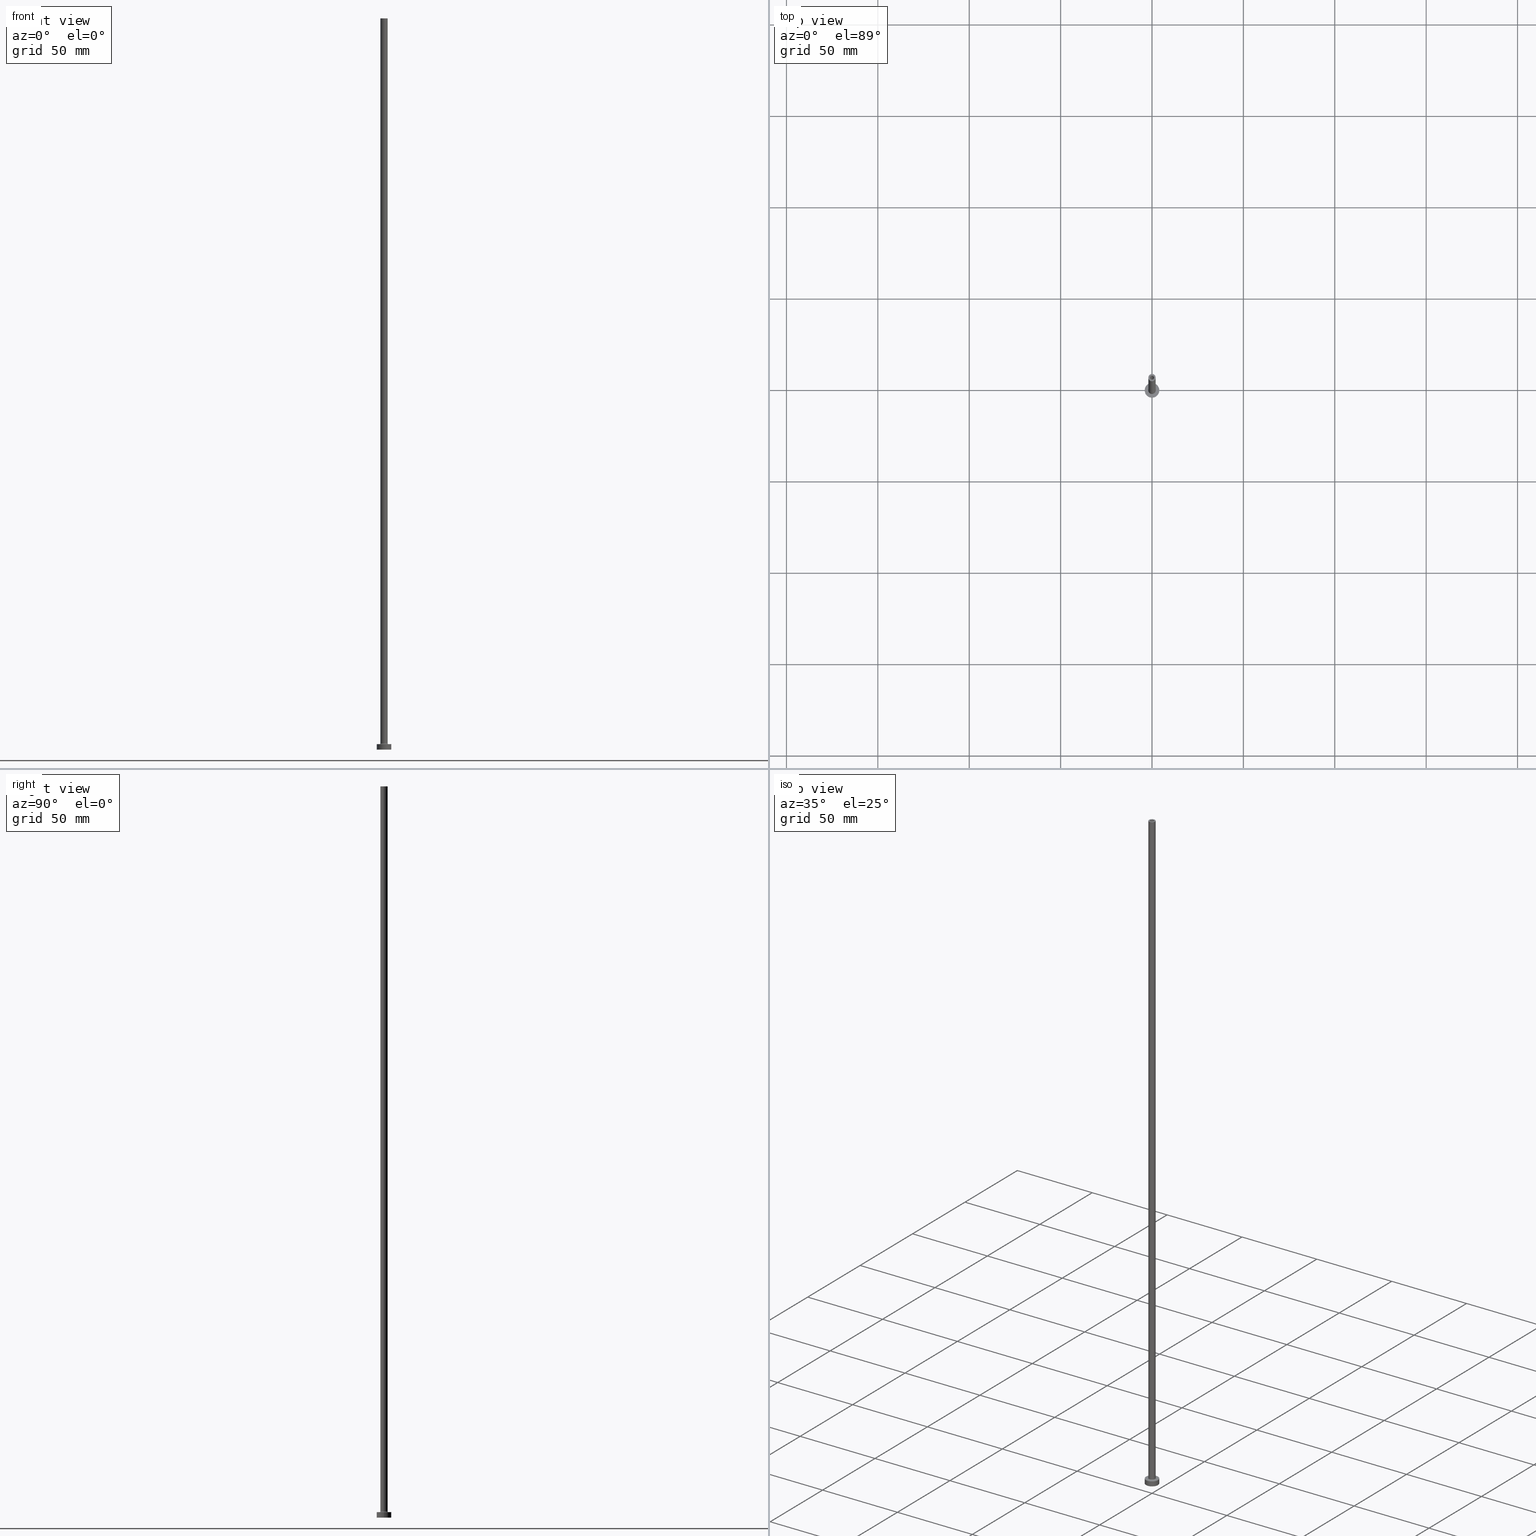
[diagram: canonical four-view strip — front | top / right | iso, engineering-drawing reading convention]
A machine part, canonical four-view strip (front | top / right | iso — engineering-drawing reading convention). The complete STEP part file that produces these views, byte-faithful:
ISO-10303-21;
HEADER;
FILE_DESCRIPTION (( 'STEP AP203' ),
    '1' );
FILE_NAME ('d320.STEP',
    '2023-02-13T18:08:11',
    ( '' ),
    ( '' ),
    'SwSTEP 2.0',
    'SolidWorks 2019',
    '' );
FILE_SCHEMA (( 'CONFIG_CONTROL_DESIGN' ));
ENDSEC;

DATA;
#1 = CARTESIAN_POINT ( 'NONE',  ( 0.000000000000000000, 0.000000000000000000, 3.300000000000025135 ) ) ;
#2 = AXIS2_PLACEMENT_3D ( 'NONE', #75, #433, #112 ) ;
#3 = EDGE_LOOP ( 'NONE', ( #229, #216 ) ) ;
#4 = DIRECTION ( 'NONE',  ( -1.000000000000000000, 0.000000000000000000, 0.000000000000000000 ) ) ;
#5 = DIRECTION ( 'NONE',  ( -0.000000000000000000, -0.000000000000000000, -1.000000000000000000 ) ) ;
#6 = AXIS2_PLACEMENT_3D ( 'NONE', #116, #255, #400 ) ;
#7 = CARTESIAN_POINT ( 'NONE',  ( 0.000000000000000000, 0.000000000000000000, 0.000000000000000000 ) ) ;
#8 = EDGE_CURVE ( 'NONE', #55, #69, #35, .T. ) ;
#9 = DIRECTION ( 'NONE',  ( 1.224646799147353207E-16, 1.000000000000000000, -0.000000000000000000 ) ) ;
#10 = CARTESIAN_POINT ( 'NONE',  ( 4.000000000000000000, 4.898587196589412829E-16, 3.000000000000000000 ) ) ;
#11 = APPROVAL_ROLE ( '' ) ;
#12 = AXIS2_PLACEMENT_3D ( 'NONE', #59, #92, #195 ) ;
#13 = APPLICATION_PROTOCOL_DEFINITION ( 'international standard', 'config_control_design', 1994, #47 ) ;
#14 = EDGE_CURVE ( 'NONE', #96, #64, #304, .T. ) ;
#15 = DIRECTION ( 'NONE',  ( 1.000000000000000000, 0.000000000000000000, 0.000000000000000000 ) ) ;
#16 = ORIENTED_EDGE ( 'NONE', *, *, #410, .F. ) ;
#17 = CARTESIAN_POINT ( 'NONE',  ( -1.100000000000000089, 0.000000000000000000, 365.0000000000000000 ) ) ;
#18 = VERTEX_POINT ( 'NONE', #38 ) ;
#19 = APPROVAL ( #420, 'NEUR�EN�' ) ;
#20 = AXIS2_PLACEMENT_3D ( 'NONE', #201, #124, #332 ) ;
#21 = CARTESIAN_POINT ( 'NONE',  ( 0.000000000000000000, 0.000000000000000000, 400.0000000000000000 ) ) ;
#22 = ORIENTED_EDGE ( 'NONE', *, *, #149, .T. ) ;
#23 = APPROVAL ( #325, 'NEUR�EN�' ) ;
#24 = CARTESIAN_POINT ( 'NONE',  ( -2.299999999999999822, 2.816687638038912056E-16, 3.000000000000012434 ) ) ;
#25 = EDGE_CURVE ( 'NONE', #209, #408, #46, .T. ) ;
#26 = APPROVAL_DATE_TIME ( #343, #19 ) ;
#27 = AXIS2_PLACEMENT_3D ( 'NONE', #415, #407, #15 ) ;
#28 = LOCAL_TIME ( 19, 8, 11.00000000000000000, #184 ) ;
#29 = CC_DESIGN_PERSON_AND_ORGANIZATION_ASSIGNMENT ( #132, #274, ( #123 ) ) ;
#30 = ORIENTED_EDGE ( 'NONE', *, *, #155, .F. ) ;
#31 = DIRECTION ( 'NONE',  ( 1.000000000000000000, 0.000000000000000000, 0.000000000000000000 ) ) ;
#32 = CC_DESIGN_APPROVAL ( #23, ( #123 ) ) ;
#33 = VERTEX_POINT ( 'NONE', #111 ) ;
#34 = FACE_OUTER_BOUND ( 'NONE', #221, .T. ) ;
#35 = CIRCLE ( 'NONE', #218, 2.000000000000000000 ) ;
#36 = ADVANCED_FACE ( 'NONE', ( #459 ), #330, .F. ) ;
#37 = DIRECTION ( 'NONE',  ( 0.000000000000000000, 0.000000000000000000, -1.000000000000000000 ) ) ;
#38 = CARTESIAN_POINT ( 'NONE',  ( -1.250000000000000000, 0.000000000000000000, 365.0000000000000000 ) ) ;
#39 = CARTESIAN_POINT ( 'NONE',  ( 0.000000000000000000, 0.000000000000000000, 400.0000000000000000 ) ) ;
#40 = LINE ( 'NONE', #322, #413 ) ;
#41 = ORIENTED_EDGE ( 'NONE', *, *, #84, .T. ) ;
#42 = DIRECTION ( 'NONE',  ( 1.000000000000000000, 0.000000000000000000, 0.000000000000000000 ) ) ;
#43 = CARTESIAN_POINT ( 'NONE',  ( 0.000000000000000000, 0.000000000000000000, 0.000000000000000000 ) ) ;
#44 = EDGE_CURVE ( 'NONE', #371, #356, #257, .T. ) ;
#45 = FACE_OUTER_BOUND ( 'NONE', #252, .T. ) ;
#46 = LINE ( 'NONE', #151, #394 ) ;
#47 = APPLICATION_CONTEXT ( 'configuration controlled 3d designs of mechanical parts and assemblies' ) ;
#48 = CARTESIAN_POINT ( 'NONE',  ( 2.000000000000000000, 2.449293598294706414E-16, 400.0000000000000000 ) ) ;
#49 = AXIS2_PLACEMENT_3D ( 'NONE', #296, #441, #196 ) ;
#50 = SHAPE_DEFINITION_REPRESENTATION ( #316, #128 ) ;
#51 = AXIS2_PLACEMENT_3D ( 'NONE', #57, #62, #267 ) ;
#52 = MECHANICAL_CONTEXT ( 'NONE', #47, 'mechanical' ) ;
#53 = EDGE_CURVE ( 'NONE', #449, #18, #205, .T. ) ;
#54 = FACE_BOUND ( 'NONE', #200, .T. ) ;
#55 = VERTEX_POINT ( 'NONE', #354 ) ;
#56 = CC_DESIGN_PERSON_AND_ORGANIZATION_ASSIGNMENT ( #165, #416, ( #212 ) ) ;
#57 = CARTESIAN_POINT ( 'NONE',  ( 0.000000000000000000, 0.000000000000000000, 365.0000000000000000 ) ) ;
#58 = ORIENTED_EDGE ( 'NONE', *, *, #410, .T. ) ;
#59 = CARTESIAN_POINT ( 'NONE',  ( 0.000000000000000000, 0.000000000000000000, 400.0000000000000000 ) ) ;
#60 = ORIENTED_EDGE ( 'NONE', *, *, #313, .T. ) ;
#61 = CIRCLE ( 'NONE', #289, 0.2999999999999999334 ) ;
#62 = DIRECTION ( 'NONE',  ( 0.000000000000000000, 0.000000000000000000, 1.000000000000000000 ) ) ;
#63 = CARTESIAN_POINT ( 'NONE',  ( 0.000000000000000000, 0.000000000000000000, 0.000000000000000000 ) ) ;
#64 = VERTEX_POINT ( 'NONE', #148 ) ;
#65 =( GEOMETRIC_REPRESENTATION_CONTEXT ( 3 ) GLOBAL_UNCERTAINTY_ASSIGNED_CONTEXT ( ( #442 ) ) GLOBAL_UNIT_ASSIGNED_CONTEXT ( ( #139, #365, #403 ) ) REPRESENTATION_CONTEXT ( 'NONE', 'WORKASPACE' ) );
#66 = DIRECTION ( 'NONE',  ( 0.000000000000000000, 0.000000000000000000, 1.000000000000000000 ) ) ;
#67 = VERTEX_POINT ( 'NONE', #279 ) ;
#68 = AXIS2_PLACEMENT_3D ( 'NONE', #79, #327, #438 ) ;
#69 = VERTEX_POINT ( 'NONE', #285 ) ;
#70 = CARTESIAN_POINT ( 'NONE',  ( -4.000000000000000000, 0.000000000000000000, 0.000000000000000000 ) ) ;
#71 = CIRCLE ( 'NONE', #237, 1.250000000000000000 ) ;
#72 = ORIENTED_EDGE ( 'NONE', *, *, #131, .F. ) ;
#73 = DIRECTION ( 'NONE',  ( 0.000000000000000000, 0.000000000000000000, 1.000000000000000000 ) ) ;
#74 = DIRECTION ( 'NONE',  ( 1.000000000000000000, 0.000000000000000000, 0.000000000000000000 ) ) ;
#75 = CARTESIAN_POINT ( 'NONE',  ( 0.000000000000000000, 0.000000000000000000, 3.000000000000000000 ) ) ;
#76 = FACE_OUTER_BOUND ( 'NONE', #244, .T. ) ;
#77 = VERTEX_POINT ( 'NONE', #430 ) ;
#78 = DIRECTION ( 'NONE',  ( 0.000000000000000000, 0.000000000000000000, 1.000000000000000000 ) ) ;
#79 = CARTESIAN_POINT ( 'NONE',  ( 0.000000000000000000, 0.000000000000000000, 3.000000000000000000 ) ) ;
#80 = AXIS2_PLACEMENT_3D ( 'NONE', #349, #66, #31 ) ;
#81 = CC_DESIGN_APPROVAL ( #440, ( #390 ) ) ;
#82 = DIRECTION ( 'NONE',  ( 0.000000000000000000, 0.000000000000000000, -1.000000000000000000 ) ) ;
#83 = FACE_OUTER_BOUND ( 'NONE', #387, .T. ) ;
#84 = EDGE_CURVE ( 'NONE', #371, #67, #157, .T. ) ;
#85 = DIRECTION ( 'NONE',  ( 0.000000000000000000, 0.000000000000000000, -1.000000000000000000 ) ) ;
#86 = DATE_TIME_ROLE ( 'classification_date' ) ;
#87 = MANIFOLD_SOLID_BREP ( 'Odebrat vysunut�m4', #180 ) ;
#88 = AXIS2_PLACEMENT_3D ( 'NONE', #226, #158, #366 ) ;
#89 = ORIENTED_EDGE ( 'NONE', *, *, #131, .T. ) ;
#90 = CYLINDRICAL_SURFACE ( 'NONE', #12, 2.000000000000000000 ) ;
#91 = ORIENTED_EDGE ( 'NONE', *, *, #299, .F. ) ;
#92 = DIRECTION ( 'NONE',  ( -0.000000000000000000, -0.000000000000000000, -1.000000000000000000 ) ) ;
#93 = ADVANCED_FACE ( 'NONE', ( #83 ), #419, .F. ) ;
#94 = ADVANCED_FACE ( 'NONE', ( #396, #76 ), #187, .F. ) ;
#95 = DIRECTION ( 'NONE',  ( 1.000000000000000000, 0.000000000000000000, 0.000000000000000000 ) ) ;
#96 = VERTEX_POINT ( 'NONE', #360 ) ;
#97 = AXIS2_PLACEMENT_3D ( 'NONE', #234, #374, #95 ) ;
#98 = AXIS2_PLACEMENT_3D ( 'NONE', #317, #73, #150 ) ;
#99 = EDGE_LOOP ( 'NONE', ( #164, #137, #22, #348 ) ) ;
#100 = EDGE_LOOP ( 'NONE', ( #277, #183 ) ) ;
#101 = COORDINATED_UNIVERSAL_TIME_OFFSET ( 1, 0, .AHEAD. ) ;
#102 = CALENDAR_DATE ( 2023, 13, 2 ) ;
#103 = PRODUCT_DEFINITION ( 'NEZN�M�', '', #390, #411 ) ;
#104 = ORIENTED_EDGE ( 'NONE', *, *, #25, .T. ) ;
#105 = PERSON_AND_ORGANIZATION ( #406, #110 ) ;
#106 = DIRECTION ( 'NONE',  ( -0.000000000000000000, -0.000000000000000000, -1.000000000000000000 ) ) ;
#107 = EDGE_CURVE ( 'NONE', #55, #457, #40, .T. ) ;
#108 = VERTEX_POINT ( 'NONE', #435 ) ;
#109 = CYLINDRICAL_SURFACE ( 'NONE', #455, 4.000000000000000000 ) ;
#110 = ORGANIZATION ( 'NEUR�EN�', 'NEUR�EN�', '' ) ;
#111 = CARTESIAN_POINT ( 'NONE',  ( 2.299999999999999822, 0.000000000000000000, 3.000000000000012434 ) ) ;
#112 = DIRECTION ( 'NONE',  ( 1.000000000000000000, 0.000000000000000000, -0.000000000000000000 ) ) ;
#113 = CIRCLE ( 'NONE', #68, 2.299999999999999822 ) ;
#114 = ORIENTED_EDGE ( 'NONE', *, *, #299, .T. ) ;
#115 = DIRECTION ( 'NONE',  ( 0.000000000000000000, 0.000000000000000000, 1.000000000000000000 ) ) ;
#116 = CARTESIAN_POINT ( 'NONE',  ( 0.000000000000000000, 0.000000000000000000, 3.000000000000000000 ) ) ;
#117 = DIRECTION ( 'NONE',  ( -0.000000000000000000, -0.000000000000000000, -1.000000000000000000 ) ) ;
#118 = CIRCLE ( 'NONE', #214, 1.100000000000000089 ) ;
#119 = FACE_BOUND ( 'NONE', #3, .T. ) ;
#120 = ORIENTED_EDGE ( 'NONE', *, *, #425, .F. ) ;
#121 = DIRECTION ( 'NONE',  ( 1.000000000000000000, 0.000000000000000000, 0.000000000000000000 ) ) ;
#122 = CIRCLE ( 'NONE', #88, 1.100000000000000089 ) ;
#123 = SECURITY_CLASSIFICATION ( '', '', #305 ) ;
#124 = DIRECTION ( 'NONE',  ( 0.000000000000000000, 0.000000000000000000, 1.000000000000000000 ) ) ;
#125 = DIRECTION ( 'NONE',  ( 1.000000000000000000, 0.000000000000000000, -0.000000000000000000 ) ) ;
#126 = ORIENTED_EDGE ( 'NONE', *, *, #328, .F. ) ;
#127 = DIRECTION ( 'NONE',  ( -0.000000000000000000, -0.000000000000000000, -1.000000000000000000 ) ) ;
#128 = ADVANCED_BREP_SHAPE_REPRESENTATION ( 'd320', ( #87, #162 ), #65 ) ;
#129 = ORIENTED_EDGE ( 'NONE', *, *, #359, .T. ) ;
#130 = CALENDAR_DATE ( 2023, 13, 2 ) ;
#131 = EDGE_CURVE ( 'NONE', #209, #96, #210, .T. ) ;
#132 = PERSON_AND_ORGANIZATION ( #406, #110 ) ;
#133 = ORIENTED_EDGE ( 'NONE', *, *, #14, .T. ) ;
#134 = PERSON_AND_ORGANIZATION_ROLE ( 'creator' ) ;
#135 = VECTOR ( 'NONE', #37, 1000.000000000000000 ) ;
#136 = EDGE_CURVE ( 'NONE', #308, #33, #113, .T. ) ;
#137 = ORIENTED_EDGE ( 'NONE', *, *, #328, .T. ) ;
#138 = CALENDAR_DATE ( 2023, 13, 2 ) ;
#139 =( LENGTH_UNIT ( ) NAMED_UNIT ( * ) SI_UNIT ( .MILLI., .METRE. ) );
#140 = DIRECTION ( 'NONE',  ( 0.000000000000000000, 0.000000000000000000, 1.000000000000000000 ) ) ;
#141 = PERSON_AND_ORGANIZATION ( #406, #110 ) ;
#142 = AXIS2_PLACEMENT_3D ( 'NONE', #458, #78, #364 ) ;
#143 = DIRECTION ( 'NONE',  ( 1.000000000000000000, 0.000000000000000000, 0.000000000000000000 ) ) ;
#144 = DIRECTION ( 'NONE',  ( 0.000000000000000000, 0.000000000000000000, 1.000000000000000000 ) ) ;
#145 = ORIENTED_EDGE ( 'NONE', *, *, #323, .T. ) ;
#146 = PERSON_AND_ORGANIZATION ( #406, #110 ) ;
#147 = CARTESIAN_POINT ( 'NONE',  ( -2.000000000000000000, 0.000000000000000000, 3.300000000000025135 ) ) ;
#148 = CARTESIAN_POINT ( 'NONE',  ( 4.000000000000000000, 4.898587196589412829E-16, 0.000000000000000000 ) ) ;
#149 = EDGE_CURVE ( 'NONE', #108, #301, #368, .T. ) ;
#150 = DIRECTION ( 'NONE',  ( 1.000000000000000000, 0.000000000000000000, 0.000000000000000000 ) ) ;
#151 = CARTESIAN_POINT ( 'NONE',  ( -4.000000000000000000, 0.000000000000000000, 3.000000000000000000 ) ) ;
#152 = PRODUCT_RELATED_PRODUCT_CATEGORY ( 'detail', '', ( #212 ) ) ;
#153 = CIRCLE ( 'NONE', #49, 1.100000000000000089 ) ;
#154 = AXIS2_PLACEMENT_3D ( 'NONE', #39, #353, #329 ) ;
#155 = EDGE_CURVE ( 'NONE', #67, #168, #235, .T. ) ;
#156 = AXIS2_PLACEMENT_3D ( 'NONE', #1, #144, #283 ) ;
#157 = CIRCLE ( 'NONE', #173, 1.100000000000000089 ) ;
#158 = DIRECTION ( 'NONE',  ( 0.000000000000000000, 0.000000000000000000, 1.000000000000000000 ) ) ;
#159 = ORIENTED_EDGE ( 'NONE', *, *, #8, .F. ) ;
#160 = CARTESIAN_POINT ( 'NONE',  ( -4.000000000000000000, 0.000000000000000000, 3.000000000000000000 ) ) ;
#161 = AXIS2_PLACEMENT_3D ( 'NONE', #231, #377, #446 ) ;
#162 = AXIS2_PLACEMENT_3D ( 'NONE', #63, #259, #369 ) ;
#163 = FACE_OUTER_BOUND ( 'NONE', #375, .T. ) ;
#164 = ORIENTED_EDGE ( 'NONE', *, *, #379, .T. ) ;
#165 = PERSON_AND_ORGANIZATION ( #406, #110 ) ;
#166 = CARTESIAN_POINT ( 'NONE',  ( 2.299999999999999822, 0.000000000000000000, 3.300000000000025135 ) ) ;
#167 = EDGE_LOOP ( 'NONE', ( #211, #72, #104, #389 ) ) ;
#168 = VERTEX_POINT ( 'NONE', #17 ) ;
#169 = AXIS2_PLACEMENT_3D ( 'NONE', #298, #334, #125 ) ;
#170 = PERSON_AND_ORGANIZATION ( #406, #110 ) ;
#171 = DIRECTION ( 'NONE',  ( 1.000000000000000000, 0.000000000000000000, 0.000000000000000000 ) ) ;
#172 = PERSON_AND_ORGANIZATION_ROLE ( 'design_supplier' ) ;
#173 = AXIS2_PLACEMENT_3D ( 'NONE', #392, #288, #74 ) ;
#174 = ORIENTED_EDGE ( 'NONE', *, *, #53, .T. ) ;
#175 = ORIENTED_EDGE ( 'NONE', *, *, #359, .F. ) ;
#176 = EDGE_CURVE ( 'NONE', #69, #77, #294, .T. ) ;
#177 = VECTOR ( 'NONE', #82, 1000.000000000000000 ) ;
#178 = CARTESIAN_POINT ( 'NONE',  ( 1.100000000000000089, 1.347111479062088503E-16, 400.0000000000000000 ) ) ;
#179 = DIRECTION ( 'NONE',  ( -0.000000000000000000, -0.000000000000000000, -1.000000000000000000 ) ) ;
#180 = CLOSED_SHELL ( 'NONE', ( #426, #456, #93, #199, #386, #404, #445, #94, #233, #295, #382, #36, #230, #193 ) ) ;
#181 = DIRECTION ( 'NONE',  ( -1.000000000000000000, 0.000000000000000000, 0.000000000000000000 ) ) ;
#182 = DIRECTION ( 'NONE',  ( -0.000000000000000000, -0.000000000000000000, -1.000000000000000000 ) ) ;
#183 = ORIENTED_EDGE ( 'NONE', *, *, #53, .F. ) ;
#184 = COORDINATED_UNIVERSAL_TIME_OFFSET ( 1, 0, .AHEAD. ) ;
#185 = PLANE ( 'NONE',  #2 ) ;
#186 = AXIS2_PLACEMENT_3D ( 'NONE', #321, #256, #4 ) ;
#187 = PLANE ( 'NONE',  #306 ) ;
#188 = ORIENTED_EDGE ( 'NONE', *, *, #313, .F. ) ;
#189 = DIRECTION ( 'NONE',  ( -1.000000000000000000, 0.000000000000000000, 0.000000000000000000 ) ) ;
#190 = LINE ( 'NONE', #282, #135 ) ;
#191 = CARTESIAN_POINT ( 'NONE',  ( 1.100000000000000089, 1.347111479062088503E-16, 400.0000000000000000 ) ) ;
#192 = DATE_AND_TIME ( #102, #339 ) ;
#193 = ADVANCED_FACE ( 'NONE', ( #412 ), #300, .F. ) ;
#194 = EDGE_CURVE ( 'NONE', #67, #371, #118, .T. ) ;
#195 = DIRECTION ( 'NONE',  ( -1.000000000000000000, 0.000000000000000000, 0.000000000000000000 ) ) ;
#196 = DIRECTION ( 'NONE',  ( 1.000000000000000000, 0.000000000000000000, 0.000000000000000000 ) ) ;
#197 = EDGE_LOOP ( 'NONE', ( #129, #286 ) ) ;
#198 = CARTESIAN_POINT ( 'NONE',  ( 0.000000000000000000, 0.000000000000000000, 0.000000000000000000 ) ) ;
#199 = ADVANCED_FACE ( 'NONE', ( #409 ), #90, .T. ) ;
#200 = EDGE_LOOP ( 'NONE', ( #424, #436 ) ) ;
#201 = CARTESIAN_POINT ( 'NONE',  ( 0.000000000000000000, 0.000000000000000000, 400.0000000000000000 ) ) ;
#202 = EDGE_LOOP ( 'NONE', ( #324, #434, #421, #242 ) ) ;
#203 = APPROVAL_PERSON_ORGANIZATION ( #146, #23, #11 ) ;
#204 = FACE_OUTER_BOUND ( 'NONE', #213, .T. ) ;
#205 = CIRCLE ( 'NONE', #250, 1.250000000000000000 ) ;
#206 = COORDINATED_UNIVERSAL_TIME_OFFSET ( 1, 0, .AHEAD. ) ;
#207 = APPLICATION_CONTEXT ( 'configuration controlled 3d designs of mechanical parts and assemblies' ) ;
#208 = ORIENTED_EDGE ( 'NONE', *, *, #245, .F. ) ;
#209 = VERTEX_POINT ( 'NONE', #160 ) ;
#210 = CIRCLE ( 'NONE', #6, 4.000000000000000000 ) ;
#211 = ORIENTED_EDGE ( 'NONE', *, *, #14, .F. ) ;
#212 = PRODUCT ( 'd320', 'd320', '', ( #52 ) ) ;
#213 = EDGE_LOOP ( 'NONE', ( #243, #159, #418, #145 ) ) ;
#214 = AXIS2_PLACEMENT_3D ( 'NONE', #21, #291, #370 ) ;
#215 = CYLINDRICAL_SURFACE ( 'NONE', #154, 1.100000000000000089 ) ;
#216 = ORIENTED_EDGE ( 'NONE', *, *, #84, .F. ) ;
#217 = DIRECTION ( 'NONE',  ( -0.000000000000000000, -0.000000000000000000, -1.000000000000000000 ) ) ;
#218 = AXIS2_PLACEMENT_3D ( 'NONE', #452, #346, #171 ) ;
#219 = CYLINDRICAL_SURFACE ( 'NONE', #186, 1.250000000000000000 ) ;
#220 = DIRECTION ( 'NONE',  ( 1.000000000000000000, 0.000000000000000000, -0.000000000000000000 ) ) ;
#221 = EDGE_LOOP ( 'NONE', ( #89, #238 ) ) ;
#222 = FACE_OUTER_BOUND ( 'NONE', #167, .T. ) ;
#223 = DIRECTION ( 'NONE',  ( 0.000000000000000000, 0.000000000000000000, 1.000000000000000000 ) ) ;
#224 = CARTESIAN_POINT ( 'NONE',  ( 1.100000000000000089, 1.347111479062088503E-16, 365.0000000000000000 ) ) ;
#225 = EDGE_CURVE ( 'NONE', #69, #55, #246, .T. ) ;
#226 = CARTESIAN_POINT ( 'NONE',  ( 0.000000000000000000, 0.000000000000000000, 365.0000000000000000 ) ) ;
#227 = CIRCLE ( 'NONE', #27, 4.000000000000000000 ) ;
#228 = DIRECTION ( 'NONE',  ( 0.000000000000000000, 0.000000000000000000, -1.000000000000000000 ) ) ;
#229 = ORIENTED_EDGE ( 'NONE', *, *, #194, .F. ) ;
#230 = ADVANCED_FACE ( 'NONE', ( #54, #447 ), #372, .F. ) ;
#231 = CARTESIAN_POINT ( 'NONE',  ( 0.000000000000000000, 0.000000000000000000, 400.0000000000000000 ) ) ;
#232 = ORIENTED_EDGE ( 'NONE', *, *, #25, .F. ) ;
#233 = ADVANCED_FACE ( 'NONE', ( #204 ), #265, .T. ) ;
#234 = CARTESIAN_POINT ( 'NONE',  ( 0.000000000000000000, 0.000000000000000000, 0.000000000000000000 ) ) ;
#235 = LINE ( 'NONE', #338, #431 ) ;
#236 = CC_DESIGN_DATE_AND_TIME_ASSIGNMENT ( #192, #86, ( #123 ) ) ;
#237 = AXIS2_PLACEMENT_3D ( 'NONE', #391, #115, #143 ) ;
#238 = ORIENTED_EDGE ( 'NONE', *, *, #385, .T. ) ;
#239 = APPLICATION_PROTOCOL_DEFINITION ( 'international standard', 'config_control_design', 1994, #207 ) ;
#240 = ORIENTED_EDGE ( 'NONE', *, *, #149, .F. ) ;
#241 = CC_DESIGN_SECURITY_CLASSIFICATION ( #123, ( #390 ) ) ;
#242 = ORIENTED_EDGE ( 'NONE', *, *, #107, .F. ) ;
#243 = ORIENTED_EDGE ( 'NONE', *, *, #176, .F. ) ;
#244 = EDGE_LOOP ( 'NONE', ( #350, #91 ) ) ;
#245 = EDGE_CURVE ( 'NONE', #168, #356, #153, .T. ) ;
#246 = CIRCLE ( 'NONE', #20, 2.000000000000000000 ) ;
#247 = DIRECTION ( 'NONE',  ( 0.000000000000000000, 0.000000000000000000, 1.000000000000000000 ) ) ;
#248 = CARTESIAN_POINT ( 'NONE',  ( 0.000000000000000000, 0.000000000000000000, 365.0000000000000000 ) ) ;
#249 = CARTESIAN_POINT ( 'NONE',  ( 1.250000000000000000, 1.530808498934191571E-16, 365.0000000000000000 ) ) ;
#250 = AXIS2_PLACEMENT_3D ( 'NONE', #248, #140, #402 ) ;
#251 = DIRECTION ( 'NONE',  ( 0.000000000000000000, 0.000000000000000000, -1.000000000000000000 ) ) ;
#252 = EDGE_LOOP ( 'NONE', ( #271, #133, #114, #232 ) ) ;
#253 = APPROVAL_DATE_TIME ( #333, #23 ) ;
#254 = CARTESIAN_POINT ( 'NONE',  ( 0.000000000000000000, 0.000000000000000000, 3.000000000000000000 ) ) ;
#255 = DIRECTION ( 'NONE',  ( 0.000000000000000000, 0.000000000000000000, 1.000000000000000000 ) ) ;
#256 = DIRECTION ( 'NONE',  ( 0.000000000000000000, 0.000000000000000000, -1.000000000000000000 ) ) ;
#257 = LINE ( 'NONE', #191, #342 ) ;
#258 = CARTESIAN_POINT ( 'NONE',  ( 0.000000000000000000, 0.000000000000000000, 368.5355339059327662 ) ) ;
#259 = DIRECTION ( 'NONE',  ( 0.000000000000000000, 0.000000000000000000, 1.000000000000000000 ) ) ;
#260 = PLANE ( 'NONE',  #169 ) ;
#261 = TOROIDAL_SURFACE ( 'NONE', #337, 2.299999999999999822, 0.2999999999999999889 ) ;
#262 = DIRECTION ( 'NONE',  ( -0.000000000000000000, -0.000000000000000000, -1.000000000000000000 ) ) ;
#263 = APPROVAL_PERSON_ORGANIZATION ( #105, #440, #384 ) ;
#264 = EDGE_LOOP ( 'NONE', ( #120, #240 ) ) ;
#265 = CYLINDRICAL_SURFACE ( 'NONE', #319, 2.000000000000000000 ) ;
#266 = EDGE_LOOP ( 'NONE', ( #16, #381, #60, #397 ) ) ;
#267 = DIRECTION ( 'NONE',  ( 1.000000000000000000, 0.000000000000000000, -0.000000000000000000 ) ) ;
#268 = ORIENTED_EDGE ( 'NONE', *, *, #44, .F. ) ;
#269 = DIRECTION ( 'NONE',  ( -1.000000000000000000, 0.000000000000000000, 0.000000000000000000 ) ) ;
#270 = CIRCLE ( 'NONE', #439, 2.299999999999999822 ) ;
#271 = ORIENTED_EDGE ( 'NONE', *, *, #385, .F. ) ;
#272 = ORIENTED_EDGE ( 'NONE', *, *, #44, .T. ) ;
#273 = EDGE_CURVE ( 'NONE', #408, #64, #303, .T. ) ;
#274 = PERSON_AND_ORGANIZATION_ROLE ( 'classification_officer' ) ;
#275 = CIRCLE ( 'NONE', #80, 2.000000000000000000 ) ;
#276 = ORIENTED_EDGE ( 'NONE', *, *, #225, .T. ) ;
#277 = ORIENTED_EDGE ( 'NONE', *, *, #379, .F. ) ;
#278 = FACE_OUTER_BOUND ( 'NONE', #266, .T. ) ;
#279 = CARTESIAN_POINT ( 'NONE',  ( -1.100000000000000089, 0.000000000000000000, 400.0000000000000000 ) ) ;
#280 = AXIS2_PLACEMENT_3D ( 'NONE', #166, #448, #417 ) ;
#281 = CIRCLE ( 'NONE', #345, 1.250000000000000000 ) ;
#282 = CARTESIAN_POINT ( 'NONE',  ( -1.250000000000000000, 0.000000000000000000, 368.5355339059327662 ) ) ;
#283 = DIRECTION ( 'NONE',  ( 1.000000000000000000, 0.000000000000000000, 0.000000000000000000 ) ) ;
#284 = AXIS2_PLACEMENT_3D ( 'NONE', #258, #251, #405 ) ;
#285 = CARTESIAN_POINT ( 'NONE',  ( 2.000000000000000000, 2.449293598294706414E-16, 400.0000000000000000 ) ) ;
#286 = ORIENTED_EDGE ( 'NONE', *, *, #136, .T. ) ;
#287 = FACE_BOUND ( 'NONE', #197, .T. ) ;
#288 = DIRECTION ( 'NONE',  ( 0.000000000000000000, 0.000000000000000000, 1.000000000000000000 ) ) ;
#289 = AXIS2_PLACEMENT_3D ( 'NONE', #363, #9, #358 ) ;
#290 = CC_DESIGN_PERSON_AND_ORGANIZATION_ASSIGNMENT ( #432, #172, ( #390 ) ) ;
#291 = DIRECTION ( 'NONE',  ( 0.000000000000000000, 0.000000000000000000, 1.000000000000000000 ) ) ;
#292 = VECTOR ( 'NONE', #179, 1000.000000000000000 ) ;
#293 = ORIENTED_EDGE ( 'NONE', *, *, #8, .T. ) ;
#294 = LINE ( 'NONE', #48, #451 ) ;
#295 = ADVANCED_FACE ( 'NONE', ( #119, #163 ), #260, .T. ) ;
#296 = CARTESIAN_POINT ( 'NONE',  ( 0.000000000000000000, 0.000000000000000000, 365.0000000000000000 ) ) ;
#297 = LOCAL_TIME ( 19, 8, 11.00000000000000000, #101 ) ;
#298 = CARTESIAN_POINT ( 'NONE',  ( 0.000000000000000000, 0.000000000000000000, 400.0000000000000000 ) ) ;
#299 = EDGE_CURVE ( 'NONE', #64, #408, #227, .T. ) ;
#300 = CYLINDRICAL_SURFACE ( 'NONE', #161, 1.100000000000000089 ) ;
#301 = VERTEX_POINT ( 'NONE', #341 ) ;
#302 = CC_DESIGN_DATE_AND_TIME_ASSIGNMENT ( #347, #315, ( #103 ) ) ;
#303 = CIRCLE ( 'NONE', #97, 4.000000000000000000 ) ;
#304 = LINE ( 'NONE', #10, #292 ) ;
#305 = SECURITY_CLASSIFICATION_LEVEL ( 'unclassified' ) ;
#306 = AXIS2_PLACEMENT_3D ( 'NONE', #43, #223, #220 ) ;
#307 = LINE ( 'NONE', #437, #177 ) ;
#308 = VERTEX_POINT ( 'NONE', #24 ) ;
#309 = EDGE_LOOP ( 'NONE', ( #126, #174, #340, #312 ) ) ;
#310 = AXIS2_PLACEMENT_3D ( 'NONE', #326, #117, #181 ) ;
#311 = DATE_AND_TIME ( #460, #320 ) ;
#312 = ORIENTED_EDGE ( 'NONE', *, *, #425, .T. ) ;
#313 = EDGE_CURVE ( 'NONE', #77, #33, #376, .T. ) ;
#314 = EDGE_CURVE ( 'NONE', #356, #168, #122, .T. ) ;
#315 = DATE_TIME_ROLE ( 'creation_date' ) ;
#316 = PRODUCT_DEFINITION_SHAPE ( 'NONE', 'NONE',  #103 ) ;
#317 = CARTESIAN_POINT ( 'NONE',  ( 0.000000000000000000, 0.000000000000000000, 3.300000000000025135 ) ) ;
#318 = EDGE_LOOP ( 'NONE', ( #373, #272, #208, #30 ) ) ;
#319 = AXIS2_PLACEMENT_3D ( 'NONE', #443, #127, #269 ) ;
#320 = LOCAL_TIME ( 19, 8, 11.00000000000000000, #427 ) ;
#321 = CARTESIAN_POINT ( 'NONE',  ( 0.000000000000000000, 0.000000000000000000, 368.5355339059327662 ) ) ;
#322 = CARTESIAN_POINT ( 'NONE',  ( -2.000000000000000000, 0.000000000000000000, 400.0000000000000000 ) ) ;
#323 = EDGE_CURVE ( 'NONE', #457, #77, #275, .T. ) ;
#324 = ORIENTED_EDGE ( 'NONE', *, *, #225, .F. ) ;
#325 = APPROVAL_STATUS ( 'not_yet_approved' ) ;
#326 = CARTESIAN_POINT ( 'NONE',  ( 0.000000000000000000, 0.000000000000000000, 3.000000000000000000 ) ) ;
#327 = DIRECTION ( 'NONE',  ( -0.000000000000000000, -0.000000000000000000, -1.000000000000000000 ) ) ;
#328 = EDGE_CURVE ( 'NONE', #449, #108, #307, .T. ) ;
#329 = DIRECTION ( 'NONE',  ( -1.000000000000000000, 0.000000000000000000, 0.000000000000000000 ) ) ;
#330 = CYLINDRICAL_SURFACE ( 'NONE', #284, 1.250000000000000000 ) ;
#331 = CC_DESIGN_APPROVAL ( #19, ( #103 ) ) ;
#332 = DIRECTION ( 'NONE',  ( 1.000000000000000000, 0.000000000000000000, 0.000000000000000000 ) ) ;
#333 = DATE_AND_TIME ( #367, #28 ) ;
#334 = DIRECTION ( 'NONE',  ( 0.000000000000000000, 0.000000000000000000, 1.000000000000000000 ) ) ;
#335 = DIRECTION ( 'NONE',  ( -0.000000000000000000, -0.000000000000000000, -1.000000000000000000 ) ) ;
#336 = EDGE_LOOP ( 'NONE', ( #268, #41, #378, #444 ) ) ;
#337 = AXIS2_PLACEMENT_3D ( 'NONE', #398, #247, #461 ) ;
#338 = CARTESIAN_POINT ( 'NONE',  ( -1.100000000000000089, 0.000000000000000000, 400.0000000000000000 ) ) ;
#339 = LOCAL_TIME ( 19, 8, 11.00000000000000000, #422 ) ;
#340 = ORIENTED_EDGE ( 'NONE', *, *, #393, .T. ) ;
#341 = CARTESIAN_POINT ( 'NONE',  ( -1.250000000000000000, 0.000000000000000000, 0.000000000000000000 ) ) ;
#342 = VECTOR ( 'NONE', #85, 1000.000000000000000 ) ;
#343 = DATE_AND_TIME ( #130, #383 ) ;
#344 = CIRCLE ( 'NONE', #142, 4.000000000000000000 ) ;
#345 = AXIS2_PLACEMENT_3D ( 'NONE', #7, #217, #42 ) ;
#346 = DIRECTION ( 'NONE',  ( 0.000000000000000000, 0.000000000000000000, 1.000000000000000000 ) ) ;
#347 = DATE_AND_TIME ( #138, #297 ) ;
#348 = ORIENTED_EDGE ( 'NONE', *, *, #393, .F. ) ;
#349 = CARTESIAN_POINT ( 'NONE',  ( 0.000000000000000000, 0.000000000000000000, 3.300000000000025135 ) ) ;
#350 = ORIENTED_EDGE ( 'NONE', *, *, #273, .F. ) ;
#351 = CIRCLE ( 'NONE', #98, 2.000000000000000000 ) ;
#352 = CC_DESIGN_PERSON_AND_ORGANIZATION_ASSIGNMENT ( #141, #134, ( #390 ) ) ;
#353 = DIRECTION ( 'NONE',  ( 0.000000000000000000, 0.000000000000000000, -1.000000000000000000 ) ) ;
#354 = CARTESIAN_POINT ( 'NONE',  ( -2.000000000000000000, 0.000000000000000000, 400.0000000000000000 ) ) ;
#355 = FACE_OUTER_BOUND ( 'NONE', #318, .T. ) ;
#356 = VERTEX_POINT ( 'NONE', #224 ) ;
#357 = APPROVAL_STATUS ( 'not_yet_approved' ) ;
#358 = DIRECTION ( 'NONE',  ( -1.000000000000000000, 1.224646799147353207E-16, 0.000000000000000000 ) ) ;
#359 = EDGE_CURVE ( 'NONE', #33, #308, #270, .T. ) ;
#360 = CARTESIAN_POINT ( 'NONE',  ( 4.000000000000000000, 4.898587196589412829E-16, 3.000000000000000000 ) ) ;
#361 = ORIENTED_EDGE ( 'NONE', *, *, #323, .F. ) ;
#362 = APPROVAL_PERSON_ORGANIZATION ( #380, #19, #450 ) ;
#363 = CARTESIAN_POINT ( 'NONE',  ( -2.299999999999999822, 2.816687638038912056E-16, 3.300000000000025135 ) ) ;
#364 = DIRECTION ( 'NONE',  ( 1.000000000000000000, 0.000000000000000000, 0.000000000000000000 ) ) ;
#365 =( NAMED_UNIT ( * ) PLANE_ANGLE_UNIT ( ) SI_UNIT ( $, .RADIAN. ) );
#366 = DIRECTION ( 'NONE',  ( 1.000000000000000000, 0.000000000000000000, 0.000000000000000000 ) ) ;
#367 = CALENDAR_DATE ( 2023, 13, 2 ) ;
#368 = CIRCLE ( 'NONE', #423, 1.250000000000000000 ) ;
#369 = DIRECTION ( 'NONE',  ( 1.000000000000000000, 0.000000000000000000, 0.000000000000000000 ) ) ;
#370 = DIRECTION ( 'NONE',  ( 1.000000000000000000, 0.000000000000000000, 0.000000000000000000 ) ) ;
#371 = VERTEX_POINT ( 'NONE', #178 ) ;
#372 = PLANE ( 'NONE',  #51 ) ;
#373 = ORIENTED_EDGE ( 'NONE', *, *, #194, .T. ) ;
#374 = DIRECTION ( 'NONE',  ( 0.000000000000000000, 0.000000000000000000, 1.000000000000000000 ) ) ;
#375 = EDGE_LOOP ( 'NONE', ( #293, #276 ) ) ;
#376 = CIRCLE ( 'NONE', #280, 0.2999999999999999334 ) ;
#377 = DIRECTION ( 'NONE',  ( 0.000000000000000000, 0.000000000000000000, -1.000000000000000000 ) ) ;
#378 = ORIENTED_EDGE ( 'NONE', *, *, #155, .T. ) ;
#379 = EDGE_CURVE ( 'NONE', #18, #449, #71, .T. ) ;
#380 = PERSON_AND_ORGANIZATION ( #406, #110 ) ;
#381 = ORIENTED_EDGE ( 'NONE', *, *, #414, .F. ) ;
#382 = ADVANCED_FACE ( 'NONE', ( #278 ), #261, .F. ) ;
#383 = LOCAL_TIME ( 19, 8, 11.00000000000000000, #206 ) ;
#384 = APPROVAL_ROLE ( '' ) ;
#385 = EDGE_CURVE ( 'NONE', #96, #209, #344, .T. ) ;
#386 = ADVANCED_FACE ( 'NONE', ( #45 ), #109, .T. ) ;
#387 = EDGE_LOOP ( 'NONE', ( #361, #58, #175, #188 ) ) ;
#388 = CYLINDRICAL_SURFACE ( 'NONE', #310, 4.000000000000000000 ) ;
#389 = ORIENTED_EDGE ( 'NONE', *, *, #273, .T. ) ;
#390 = PRODUCT_DEFINITION_FORMATION_WITH_SPECIFIED_SOURCE ( 'LIBOVOLN�', '', #212, .NOT_KNOWN. ) ;
#391 = CARTESIAN_POINT ( 'NONE',  ( 0.000000000000000000, 0.000000000000000000, 365.0000000000000000 ) ) ;
#392 = CARTESIAN_POINT ( 'NONE',  ( 0.000000000000000000, 0.000000000000000000, 400.0000000000000000 ) ) ;
#393 = EDGE_CURVE ( 'NONE', #18, #301, #190, .T. ) ;
#394 = VECTOR ( 'NONE', #182, 1000.000000000000000 ) ;
#395 = FACE_OUTER_BOUND ( 'NONE', #99, .T. ) ;
#396 = FACE_BOUND ( 'NONE', #264, .T. ) ;
#397 = ORIENTED_EDGE ( 'NONE', *, *, #136, .F. ) ;
#398 = CARTESIAN_POINT ( 'NONE',  ( 0.000000000000000000, 0.000000000000000000, 3.300000000000025135 ) ) ;
#399 = CC_DESIGN_PERSON_AND_ORGANIZATION_ASSIGNMENT ( #170, #453, ( #103 ) ) ;
#400 = DIRECTION ( 'NONE',  ( 1.000000000000000000, 0.000000000000000000, 0.000000000000000000 ) ) ;
#401 = DIRECTION ( 'NONE',  ( 1.000000000000000000, 0.000000000000000000, 0.000000000000000000 ) ) ;
#402 = DIRECTION ( 'NONE',  ( 1.000000000000000000, 0.000000000000000000, 0.000000000000000000 ) ) ;
#403 =( NAMED_UNIT ( * ) SI_UNIT ( $, .STERADIAN. ) SOLID_ANGLE_UNIT ( ) );
#404 = ADVANCED_FACE ( 'NONE', ( #222 ), #388, .T. ) ;
#405 = DIRECTION ( 'NONE',  ( -1.000000000000000000, 0.000000000000000000, 0.000000000000000000 ) ) ;
#406 = PERSON ( 'NEUR�EN�', 'NEUR�EN�', 'NEUR�EN�', ('NEUR�EN�'), ('NEUR�EN�'), ('NEUR�EN�') ) ;
#407 = DIRECTION ( 'NONE',  ( 0.000000000000000000, 0.000000000000000000, 1.000000000000000000 ) ) ;
#408 = VERTEX_POINT ( 'NONE', #70 ) ;
#409 = FACE_OUTER_BOUND ( 'NONE', #202, .T. ) ;
#410 = EDGE_CURVE ( 'NONE', #457, #308, #61, .T. ) ;
#411 = DESIGN_CONTEXT ( 'detailed design', #207, 'design' ) ;
#412 = FACE_OUTER_BOUND ( 'NONE', #336, .T. ) ;
#413 = VECTOR ( 'NONE', #5, 1000.000000000000000 ) ;
#414 = EDGE_CURVE ( 'NONE', #77, #457, #351, .T. ) ;
#415 = CARTESIAN_POINT ( 'NONE',  ( 0.000000000000000000, 0.000000000000000000, 0.000000000000000000 ) ) ;
#416 = PERSON_AND_ORGANIZATION_ROLE ( 'design_owner' ) ;
#417 = DIRECTION ( 'NONE',  ( 0.000000000000000000, 0.000000000000000000, -1.000000000000000000 ) ) ;
#418 = ORIENTED_EDGE ( 'NONE', *, *, #107, .T. ) ;
#419 = TOROIDAL_SURFACE ( 'NONE', #156, 2.299999999999999822, 0.2999999999999999889 ) ;
#420 = APPROVAL_STATUS ( 'not_yet_approved' ) ;
#421 = ORIENTED_EDGE ( 'NONE', *, *, #414, .T. ) ;
#422 = COORDINATED_UNIVERSAL_TIME_OFFSET ( 1, 0, .AHEAD. ) ;
#423 = AXIS2_PLACEMENT_3D ( 'NONE', #198, #335, #121 ) ;
#424 = ORIENTED_EDGE ( 'NONE', *, *, #245, .T. ) ;
#425 = EDGE_CURVE ( 'NONE', #301, #108, #281, .T. ) ;
#426 = ADVANCED_FACE ( 'NONE', ( #355 ), #215, .F. ) ;
#427 = COORDINATED_UNIVERSAL_TIME_OFFSET ( 1, 0, .AHEAD. ) ;
#428 = CARTESIAN_POINT ( 'NONE',  ( 0.000000000000000000, 0.000000000000000000, 3.000000000000000000 ) ) ;
#429 = DIRECTION ( 'NONE',  ( -0.000000000000000000, -0.000000000000000000, -1.000000000000000000 ) ) ;
#430 = CARTESIAN_POINT ( 'NONE',  ( 2.000000000000000000, 2.449293598294706414E-16, 3.300000000000025135 ) ) ;
#431 = VECTOR ( 'NONE', #228, 1000.000000000000000 ) ;
#432 = PERSON_AND_ORGANIZATION ( #406, #110 ) ;
#433 = DIRECTION ( 'NONE',  ( 0.000000000000000000, 0.000000000000000000, 1.000000000000000000 ) ) ;
#434 = ORIENTED_EDGE ( 'NONE', *, *, #176, .T. ) ;
#435 = CARTESIAN_POINT ( 'NONE',  ( 1.250000000000000000, 1.530808498934191571E-16, 0.000000000000000000 ) ) ;
#436 = ORIENTED_EDGE ( 'NONE', *, *, #314, .T. ) ;
#437 = CARTESIAN_POINT ( 'NONE',  ( 1.250000000000000000, 1.530808498934191571E-16, 368.5355339059327662 ) ) ;
#438 = DIRECTION ( 'NONE',  ( 1.000000000000000000, 0.000000000000000000, 0.000000000000000000 ) ) ;
#439 = AXIS2_PLACEMENT_3D ( 'NONE', #428, #429, #401 ) ;
#440 = APPROVAL ( #357, 'NEUR�EN�' ) ;
#441 = DIRECTION ( 'NONE',  ( 0.000000000000000000, 0.000000000000000000, 1.000000000000000000 ) ) ;
#442 = UNCERTAINTY_MEASURE_WITH_UNIT (LENGTH_MEASURE( 1.000000000000000082E-05 ), #139, 'distance_accuracy_value', 'NONE');
#443 = CARTESIAN_POINT ( 'NONE',  ( 0.000000000000000000, 0.000000000000000000, 400.0000000000000000 ) ) ;
#444 = ORIENTED_EDGE ( 'NONE', *, *, #314, .F. ) ;
#445 = ADVANCED_FACE ( 'NONE', ( #287, #34 ), #185, .T. ) ;
#446 = DIRECTION ( 'NONE',  ( -1.000000000000000000, 0.000000000000000000, 0.000000000000000000 ) ) ;
#447 = FACE_OUTER_BOUND ( 'NONE', #100, .T. ) ;
#448 = DIRECTION ( 'NONE',  ( 0.000000000000000000, -1.000000000000000000, 0.000000000000000000 ) ) ;
#449 = VERTEX_POINT ( 'NONE', #249 ) ;
#450 = APPROVAL_ROLE ( '' ) ;
#451 = VECTOR ( 'NONE', #262, 1000.000000000000000 ) ;
#452 = CARTESIAN_POINT ( 'NONE',  ( 0.000000000000000000, 0.000000000000000000, 400.0000000000000000 ) ) ;
#453 = PERSON_AND_ORGANIZATION_ROLE ( 'creator' ) ;
#454 = APPROVAL_DATE_TIME ( #311, #440 ) ;
#455 = AXIS2_PLACEMENT_3D ( 'NONE', #254, #106, #189 ) ;
#456 = ADVANCED_FACE ( 'NONE', ( #395 ), #219, .F. ) ;
#457 = VERTEX_POINT ( 'NONE', #147 ) ;
#458 = CARTESIAN_POINT ( 'NONE',  ( 0.000000000000000000, 0.000000000000000000, 3.000000000000000000 ) ) ;
#459 = FACE_OUTER_BOUND ( 'NONE', #309, .T. ) ;
#460 = CALENDAR_DATE ( 2023, 13, 2 ) ;
#461 = DIRECTION ( 'NONE',  ( 1.000000000000000000, 0.000000000000000000, 0.000000000000000000 ) ) ;
ENDSEC;
END-ISO-10303-21;
